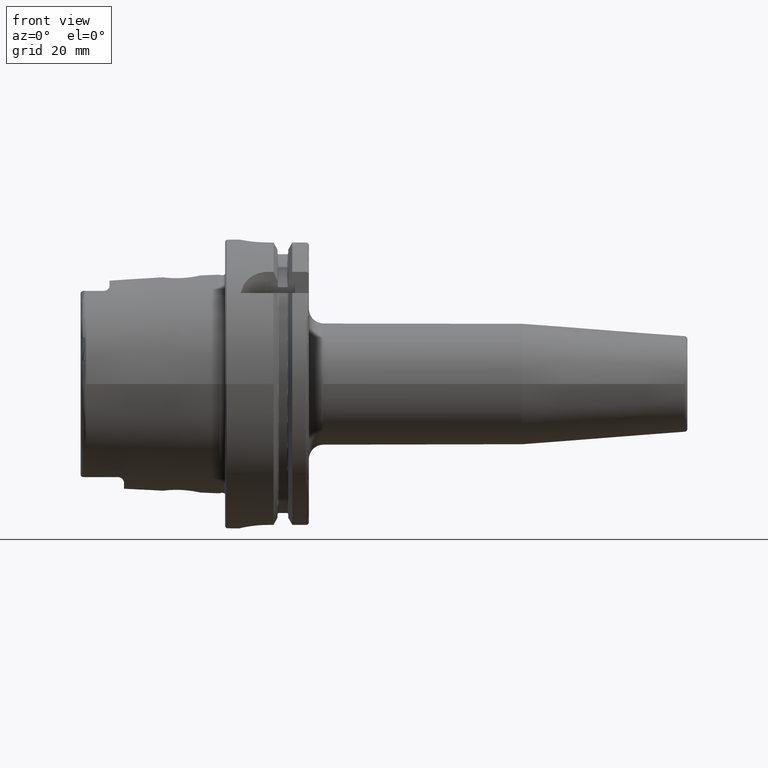
[diagram: clean part render]
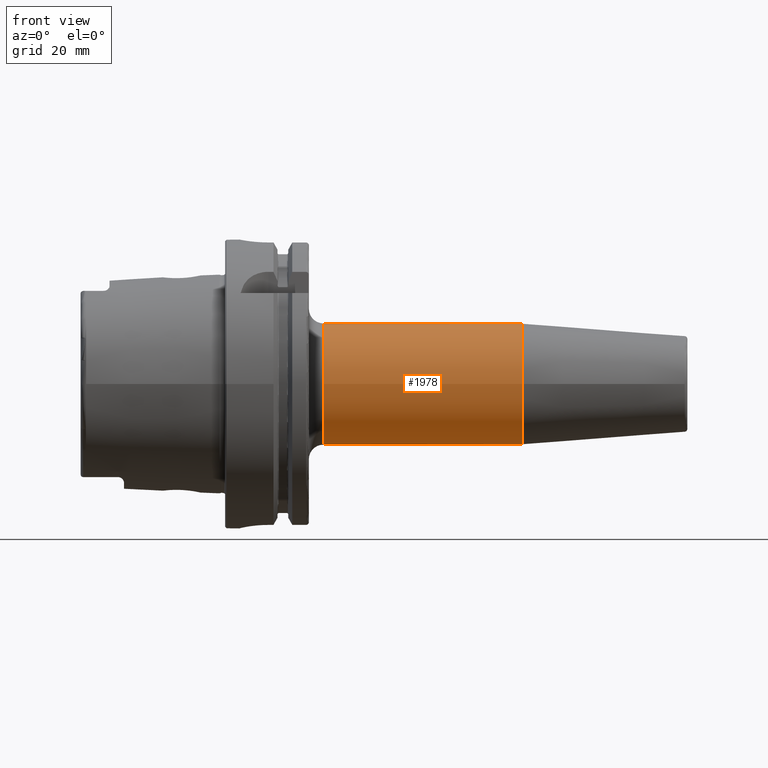
[diagram: same view with one face highlighted and labeled with its STEP entity id]
A machine part, front view. The second image highlights one B-rep face of the part: STEP entity #1978.
In plain terms, the highlighted cylindrical surface (bore or boss wall) has radius 21 mm, axis along (1, 0, 0).
Its self-contained STEP definition (entity closure, byte-faithful):
#173=CYLINDRICAL_SURFACE('',#2134,21.);
#216=FACE_OUTER_BOUND('',#338,.T.);
#338=EDGE_LOOP('',(#1356,#1357,#1358,#1359,#1360));
#464=LINE('',#3035,#571);
#571=VECTOR('',#2422,21.);
#679=CIRCLE('',#2126,21.);
#681=CIRCLE('',#2130,21.);
#684=CIRCLE('',#2133,21.);
#812=VERTEX_POINT('',#3020);
#814=VERTEX_POINT('',#3027);
#815=VERTEX_POINT('',#3028);
#1021=EDGE_CURVE('',#812,#812,#679,.T.);
#1023=EDGE_CURVE('',#814,#815,#681,.T.);
#1026=EDGE_CURVE('',#815,#814,#684,.T.);
#1027=EDGE_CURVE('',#812,#814,#464,.T.);
#1356=ORIENTED_EDGE('',*,*,#1021,.F.);
#1357=ORIENTED_EDGE('',*,*,#1027,.T.);
#1358=ORIENTED_EDGE('',*,*,#1026,.F.);
#1359=ORIENTED_EDGE('',*,*,#1023,.F.);
#1360=ORIENTED_EDGE('',*,*,#1027,.F.);
#1978=ADVANCED_FACE('',(#216),#173,.T.);
#2126=AXIS2_PLACEMENT_3D('',#3022,#2404,#2405);
#2130=AXIS2_PLACEMENT_3D('',#3029,#2412,#2413);
#2133=AXIS2_PLACEMENT_3D('',#3033,#2418,#2419);
#2134=AXIS2_PLACEMENT_3D('',#3034,#2420,#2421);
#2404=DIRECTION('center_axis',(1.,0.,0.));
#2405=DIRECTION('ref_axis',(0.,0.,-1.));
#2412=DIRECTION('center_axis',(-1.,0.,0.));
#2413=DIRECTION('ref_axis',(0.,-1.,-1.22464679914735E-16));
#2418=DIRECTION('center_axis',(-1.,0.,0.));
#2419=DIRECTION('ref_axis',(0.,-1.,-1.22464679914735E-16));
#2420=DIRECTION('center_axis',(1.,0.,0.));
#2421=DIRECTION('ref_axis',(0.,1.,0.));
#2422=DIRECTION('',(-1.,0.,0.));
#3020=CARTESIAN_POINT('',(102.822078687214,-21.,-2.57175827820944E-15));
#3022=CARTESIAN_POINT('Origin',(102.822078687214,0.,0.));
#3027=CARTESIAN_POINT('',(34.,-21.,-2.57175827820944E-15));
#3028=CARTESIAN_POINT('',(34.,-2.57175827820944E-15,-21.));
#3029=CARTESIAN_POINT('Origin',(34.,0.,0.));
#3033=CARTESIAN_POINT('Origin',(34.,0.,0.));
#3034=CARTESIAN_POINT('Origin',(65.9110393436069,0.,0.));
#3035=CARTESIAN_POINT('',(65.9110393436069,-21.,-2.57175827820944E-15));